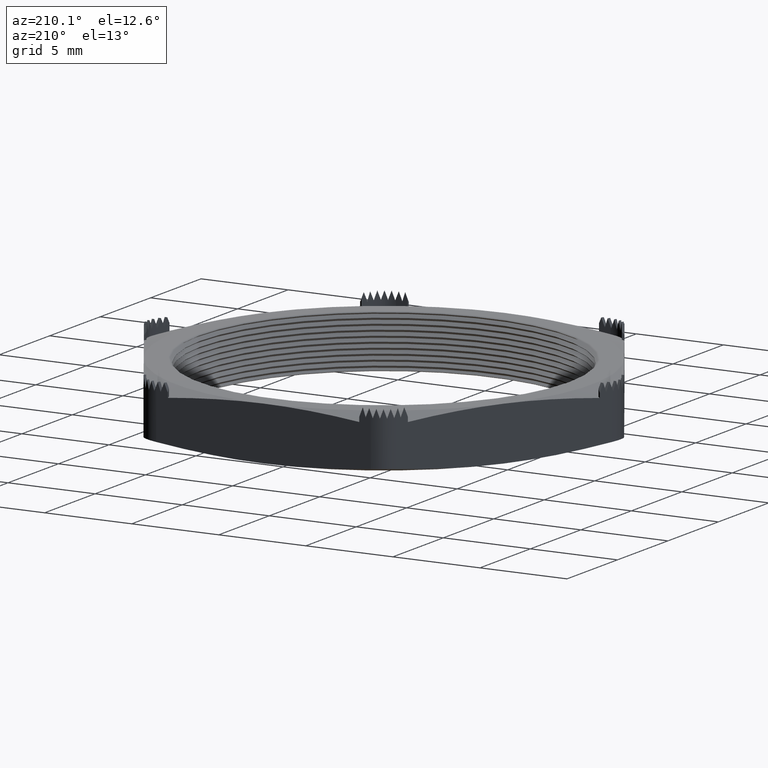
[diagram: clean part render]
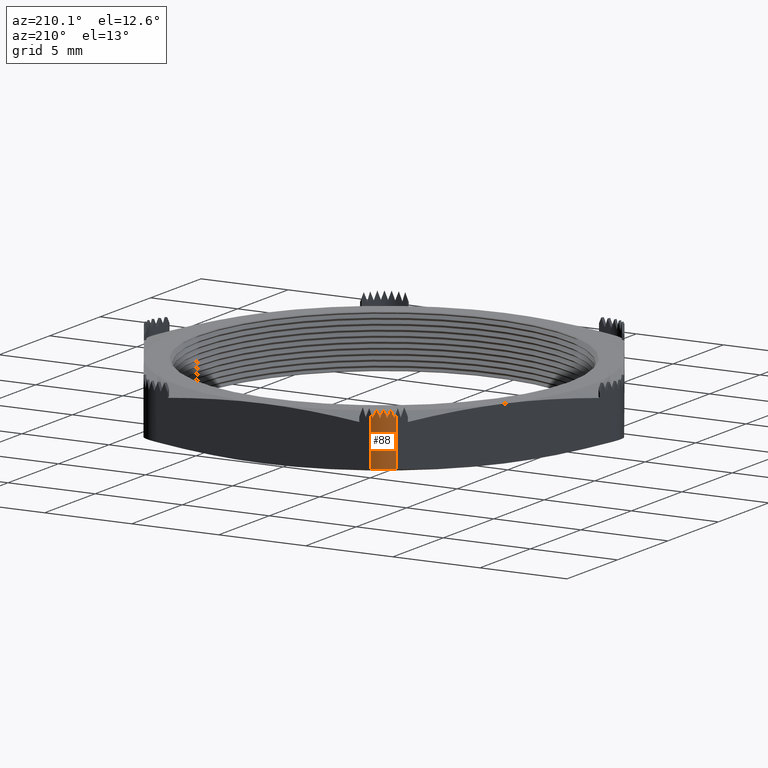
[diagram: same view with one face highlighted and labeled with its STEP entity id]
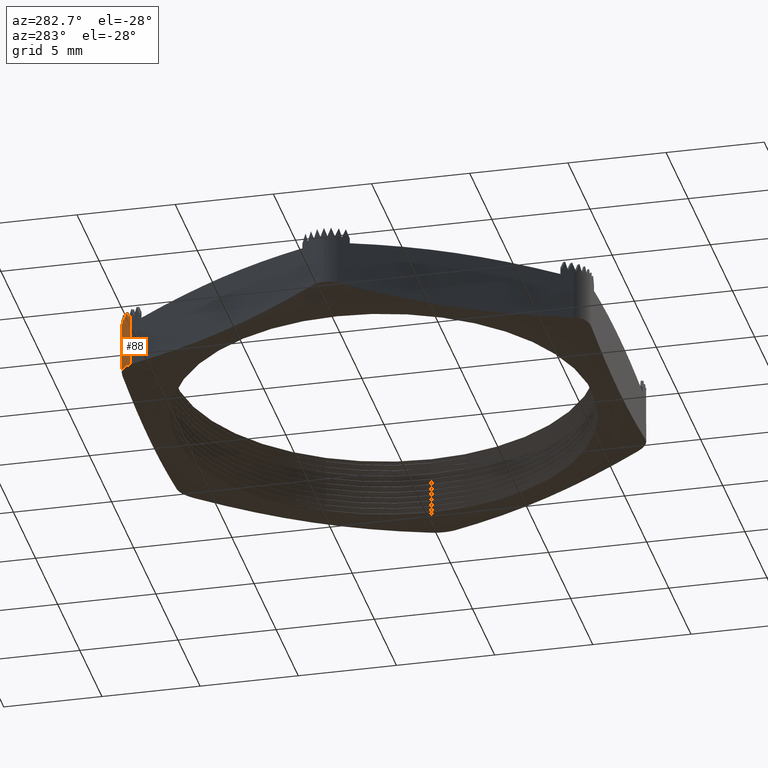
[diagram: same view with one face highlighted and labeled with its STEP entity id]
A machine part, auxiliary view. The second image highlights one B-rep face of the part: STEP entity #88.
A second angle (auxiliary view) of the same face is appended — the face is thin or edge-on in the first view.
In plain terms, the highlighted cylindrical surface (edge-blend (fillet) strip) has radius 1.27 mm, axis along (0, 0, -1).
Its self-contained STEP definition (entity closure, byte-faithful):
#24 = EDGE_CURVE ( 'NONE', #114, #25, #2411, .T. ) ;
#25 = VERTEX_POINT ( 'NONE', #2407 ) ;
#68 = ORIENTED_EDGE ( 'NONE', *, *, #2009, .F. ) ;
#69 = ORIENTED_EDGE ( 'NONE', *, *, #70, .F. ) ;
#70 = EDGE_CURVE ( 'NONE', #71, #2007, #2478, .T. ) ;
#71 = VERTEX_POINT ( 'NONE', #2479 ) ;
#72 = ORIENTED_EDGE ( 'NONE', *, *, #73, .F. ) ;
#73 = EDGE_CURVE ( 'NONE', #74, #71, #2472, .T. ) ;
#74 = VERTEX_POINT ( 'NONE', #2473 ) ;
#88 = ADVANCED_FACE ( 'NONE', ( #2533 ), #2532, .T. ) ;
#114 = VERTEX_POINT ( 'NONE', #2539 ) ;
#139 = ORIENTED_EDGE ( 'NONE', *, *, #140, .F. ) ;
#140 = EDGE_CURVE ( 'NONE', #141, #74, #2627, .T. ) ;
#141 = VERTEX_POINT ( 'NONE', #2628 ) ;
#142 = ORIENTED_EDGE ( 'NONE', *, *, #143, .F. ) ;
#143 = EDGE_CURVE ( 'NONE', #144, #141, #2621, .T. ) ;
#144 = VERTEX_POINT ( 'NONE', #2622 ) ;
#145 = ORIENTED_EDGE ( 'NONE', *, *, #146, .F. ) ;
#146 = EDGE_CURVE ( 'NONE', #147, #144, #2640, .T. ) ;
#147 = VERTEX_POINT ( 'NONE', #2641 ) ;
#148 = ORIENTED_EDGE ( 'NONE', *, *, #149, .F. ) ;
#149 = EDGE_CURVE ( 'NONE', #150, #147, #2634, .T. ) ;
#150 = VERTEX_POINT ( 'NONE', #2635 ) ;
#151 = ORIENTED_EDGE ( 'NONE', *, *, #152, .F. ) ;
#152 = EDGE_CURVE ( 'NONE', #156, #150, #2629, .T. ) ;
#153 = EDGE_LOOP ( 'NONE', ( #154, #157, #158, #68, #69, #72, #139, #142, #145, #148, #151 ) ) ;
#154 = ORIENTED_EDGE ( 'NONE', *, *, #155, .F. ) ;
#155 = EDGE_CURVE ( 'NONE', #25, #156, #2651, .T. ) ;
#156 = VERTEX_POINT ( 'NONE', #2650 ) ;
#157 = ORIENTED_EDGE ( 'NONE', *, *, #24, .F. ) ;
#158 = ORIENTED_EDGE ( 'NONE', *, *, #159, .T. ) ;
#159 = EDGE_CURVE ( 'NONE', #114, #2071, #2645, .T. ) ;
#2007 = VERTEX_POINT ( 'NONE', #5720 ) ;
#2009 = EDGE_CURVE ( 'NONE', #2007, #2071, #5719, .T. ) ;
#2071 = VERTEX_POINT ( 'NONE', #5813 ) ;
#2407 = CARTESIAN_POINT ( 'NONE',  ( -0.2424871130596428200, 0.4700000000000000300, 0.1285500000000001100 ) ) ;
#2408 = DIRECTION ( 'NONE',  ( 0.0000000000000000000, 0.0000000000000000000, 1.000000000000000000 ) ) ;
#2409 = VECTOR ( 'NONE', #2408, 39.37007874015748100 ) ;
#2410 = CARTESIAN_POINT ( 'NONE',  ( -0.2424871130596428200, 0.4700000000000000300, 0.1200000000000000000 ) ) ;
#2411 = LINE ( 'NONE', #2410, #2409 ) ;
#2468 = CARTESIAN_POINT ( 'NONE',  ( -0.2833617491481929000, 0.4487969464462571700, 0.1177500000000000200 ) ) ;
#2469 = CARTESIAN_POINT ( 'NONE',  ( -0.2819239077560052900, 0.4508378310160294200, 0.1238672535342600500 ) ) ;
#2470 = CARTESIAN_POINT ( 'NONE',  ( -0.2803375216681117100, 0.4527655179398735700, 0.1301790276427301200 ) ) ;
#2471 = CARTESIAN_POINT ( 'NONE',  ( -0.2786114687126250400, 0.4545692193816530700, 0.1366500000000000200 ) ) ;
#2472 =( BOUNDED_CURVE ( )  B_SPLINE_CURVE ( 3, ( #2471, #2470, #2469, #2468 ),
 .UNSPECIFIED., .F., .T. ) 
 B_SPLINE_CURVE_WITH_KNOTS ( ( 4, 4 ),
 ( 4.996183089593016800, 5.145834300454574800 ),
 .UNSPECIFIED. ) 
 CURVE ( )  GEOMETRIC_REPRESENTATION_ITEM ( )  RATIONAL_B_SPLINE_CURVE ( ( 1.000000000000000000, 0.9981345801881192900, 0.9981345801881192900, 1.000000000000000000 ) ) 
 REPRESENTATION_ITEM ( '' )  );
#2473 = CARTESIAN_POINT ( 'NONE',  ( -0.2786114687126250400, 0.4545692193816530700, 0.1366500000000000200 ) ) ;
#2474 = CARTESIAN_POINT ( 'NONE',  ( -0.2857883832488647400, 0.4450000000000000100, 0.1285499999999999100 ) ) ;
#2475 = CARTESIAN_POINT ( 'NONE',  ( -0.2850368499187447800, 0.4463016939113492700, 0.1250354264393569700 ) ) ;
#2476 = CARTESIAN_POINT ( 'NONE',  ( -0.2842274237505946800, 0.4475682003911742900, 0.1214329869065072200 ) ) ;
#2477 = CARTESIAN_POINT ( 'NONE',  ( -0.2833617491481929000, 0.4487969464462571700, 0.1177500000000000200 ) ) ;
#2478 =( BOUNDED_CURVE ( )  B_SPLINE_CURVE ( 3, ( #2477, #2476, #2475, #2474 ),
 .UNSPECIFIED., .F., .T. ) 
 B_SPLINE_CURVE_WITH_KNOTS ( ( 4, 4 ),
 ( 2.004241646864783000, 2.094395102393194800 ),
 .UNSPECIFIED. ) 
 CURVE ( )  GEOMETRIC_REPRESENTATION_ITEM ( )  RATIONAL_B_SPLINE_CURVE ( ( 1.000000000000000000, 0.9993228108820309000, 0.9993228108820309000, 1.000000000000000000 ) ) 
 REPRESENTATION_ITEM ( '' )  );
#2479 = CARTESIAN_POINT ( 'NONE',  ( -0.2833617491481929000, 0.4487969464462571700, 0.1177500000000000200 ) ) ;
#2528 = DIRECTION ( 'NONE',  ( -1.000000000000000000, 0.0000000000000000000, 0.0000000000000000000 ) ) ;
#2529 = DIRECTION ( 'NONE',  ( 0.0000000000000000000, 0.0000000000000000000, -1.000000000000000000 ) ) ;
#2530 = CARTESIAN_POINT ( 'NONE',  ( -0.2424871130596428200, 0.4200000000000000400, 0.1200000000000000000 ) ) ;
#2531 = AXIS2_PLACEMENT_3D ( 'NONE', #2530, #2529, #2528 ) ;
#2532 = CYLINDRICAL_SURFACE ( 'NONE', #2531, 0.05000000000000001000 ) ;
#2533 = FACE_OUTER_BOUND ( 'NONE', #153, .T. ) ;
#2539 = CARTESIAN_POINT ( 'NONE',  ( -0.2424871130596428500, 0.4700000000000000300, 0.01577328817917133700 ) ) ;
#2617 = CARTESIAN_POINT ( 'NONE',  ( -0.2733030784751071000, 0.4593748177838694000, 0.1177500000000000200 ) ) ;
#2618 = CARTESIAN_POINT ( 'NONE',  ( -0.2714580138127917800, 0.4608188231665811300, 0.1240136640134738000 ) ) ;
#2619 = CARTESIAN_POINT ( 'NONE',  ( -0.2695161673627773900, 0.4621297951411067500, 0.1303240347401783100 ) ) ;
#2620 = CARTESIAN_POINT ( 'NONE',  ( -0.2674871130596428400, 0.4633012701892219600, 0.1366499999999998300 ) ) ;
#2621 =( BOUNDED_CURVE ( )  B_SPLINE_CURVE ( 3, ( #2620, #2619, #2618, #2617 ),
 .UNSPECIFIED., .F., .T. ) 
 B_SPLINE_CURVE_WITH_KNOTS ( ( 4, 4 ),
 ( 4.712388980384689700, 4.852850395094545600 ),
 .UNSPECIFIED. ) 
 CURVE ( )  GEOMETRIC_REPRESENTATION_ITEM ( )  RATIONAL_B_SPLINE_CURVE ( ( 1.000000000000000000, 0.9983565582509005300, 0.9983565582509005300, 1.000000000000000000 ) ) 
 REPRESENTATION_ITEM ( '' )  );
#2622 = CARTESIAN_POINT ( 'NONE',  ( -0.2674871130596428400, 0.4633012701892219600, 0.1366499999999998300 ) ) ;
#2623 = CARTESIAN_POINT ( 'NONE',  ( -0.2786114687126250400, 0.4545692193816530700, 0.1366500000000000200 ) ) ;
#2624 = CARTESIAN_POINT ( 'NONE',  ( -0.2769584202013271600, 0.4562966321899807900, 0.1304527212966833700 ) ) ;
#2625 = CARTESIAN_POINT ( 'NONE',  ( -0.2751859235345125400, 0.4579012442793061200, 0.1241419216938153100 ) ) ;
#2626 = CARTESIAN_POINT ( 'NONE',  ( -0.2733030784751071000, 0.4593748177838694000, 0.1177500000000000200 ) ) ;
#2627 =( BOUNDED_CURVE ( )  B_SPLINE_CURVE ( 3, ( #2626, #2625, #2624, #2623 ),
 .UNSPECIFIED., .F., .T. ) 
 B_SPLINE_CURVE_WITH_KNOTS ( ( 4, 4 ),
 ( 1.711257741504753000, 1.854590436003224600 ),
 .UNSPECIFIED. ) 
 CURVE ( )  GEOMETRIC_REPRESENTATION_ITEM ( )  RATIONAL_B_SPLINE_CURVE ( ( 1.000000000000000000, 0.9982887108531866000, 0.9982887108531866000, 1.000000000000000000 ) ) 
 REPRESENTATION_ITEM ( '' )  );
#2628 = CARTESIAN_POINT ( 'NONE',  ( -0.2733030784751071000, 0.4593748177838694000, 0.1177500000000000200 ) ) ;
#2629 =( BOUNDED_CURVE ( )  B_SPLINE_CURVE ( 3, ( #2655, #2654, #2653, #2652 ),
 .UNSPECIFIED., .F., .T. ) 
 B_SPLINE_CURVE_WITH_KNOTS ( ( 4, 4 ),
 ( 1.137351006725010800, 1.287002217586568700 ),
 .UNSPECIFIED. ) 
 CURVE ( )  GEOMETRIC_REPRESENTATION_ITEM ( )  RATIONAL_B_SPLINE_CURVE ( ( 1.000000000000000000, 0.9981345801881192900, 0.9981345801881192900, 1.000000000000000000 ) ) 
 REPRESENTATION_ITEM ( '' )  );
#2630 = CARTESIAN_POINT ( 'NONE',  ( -0.2611787228221249000, 0.4663748177838693600, 0.1177500000000000200 ) ) ;
#2631 = CARTESIAN_POINT ( 'NONE',  ( -0.2589611482031267700, 0.4672686226844229300, 0.1241419216938153800 ) ) ;
#2632 = CARTESIAN_POINT ( 'NONE',  ( -0.2566852650371439500, 0.4680013437813450600, 0.1304527212966834500 ) ) ;
#2633 = CARTESIAN_POINT ( 'NONE',  ( -0.2543627574066607000, 0.4685692193816531300, 0.1366500000000000200 ) ) ;
#2634 =( BOUNDED_CURVE ( )  B_SPLINE_CURVE ( 3, ( #2633, #2632, #2631, #2630 ),
 .UNSPECIFIED., .F., .T. ) 
 B_SPLINE_CURVE_WITH_KNOTS ( ( 4, 4 ),
 ( 4.428594871176361600, 4.571927565674833700 ),
 .UNSPECIFIED. ) 
 CURVE ( )  GEOMETRIC_REPRESENTATION_ITEM ( )  RATIONAL_B_SPLINE_CURVE ( ( 1.000000000000000000, 0.9982887108531866000, 0.9982887108531866000, 1.000000000000000000 ) ) 
 REPRESENTATION_ITEM ( '' )  );
#2635 = CARTESIAN_POINT ( 'NONE',  ( -0.2543627574066607000, 0.4685692193816531300, 0.1366500000000000200 ) ) ;
#2636 = CARTESIAN_POINT ( 'NONE',  ( -0.2674871130596428400, 0.4633012701892219600, 0.1366499999999998300 ) ) ;
#2637 = CARTESIAN_POINT ( 'NONE',  ( -0.2654580587565083000, 0.4644727452373371100, 0.1303240347401783100 ) ) ;
#2638 = CARTESIAN_POINT ( 'NONE',  ( -0.2633518004979124600, 0.4654989476060352700, 0.1240136640134738400 ) ) ;
#2639 = CARTESIAN_POINT ( 'NONE',  ( -0.2611787228221249000, 0.4663748177838693600, 0.1177500000000000200 ) ) ;
#2640 =( BOUNDED_CURVE ( )  B_SPLINE_CURVE ( 3, ( #2639, #2638, #2637, #2636 ),
 .UNSPECIFIED., .F., .F. ) 
 B_SPLINE_CURVE_WITH_KNOTS ( ( 4, 4 ),
 ( 1.430334912085040800, 1.570796326794896800 ),
 .UNSPECIFIED. ) 
 CURVE ( )  GEOMETRIC_REPRESENTATION_ITEM ( )  RATIONAL_B_SPLINE_CURVE ( ( 1.000000000000000000, 0.9983565582509005300, 0.9983565582509005300, 1.000000000000000000 ) ) 
 REPRESENTATION_ITEM ( '' )  );
#2641 = CARTESIAN_POINT ( 'NONE',  ( -0.2611787228221249000, 0.4663748177838693600, 0.1177500000000000200 ) ) ;
#2642 = CARTESIAN_POINT ( 'NONE',  ( -0.2468676061321141700, 0.4699999999999999700, 0.01631145619101501500 ) ) ;
#2643 = CARTESIAN_POINT ( 'NONE',  ( -0.2424871130596428500, 0.4700000000000000300, 0.01577328817917133700 ) ) ;
#2645 = B_SPLINE_CURVE_WITH_KNOTS ( 'NONE', 3,
 ( #2643, #2642, #2687, #2686, #2685, #2684, #2683, #2682, #2681, #2680 ),
 .UNSPECIFIED., .F., .F.,
 ( 4, 2, 2, 2, 4 ),
 ( 1.986839480091207000E-007, 0.0003317995995692978800, 0.0006634005151905866700, 0.0009950014308118754500, 0.001326602346433164300 ),
 .UNSPECIFIED. ) ;
#2646 = CARTESIAN_POINT ( 'NONE',  ( -0.2469886821892465500, 0.4697969464462571400, 0.1177500000000000200 ) ) ;
#2647 = CARTESIAN_POINT ( 'NONE',  ( -0.2454917195895439900, 0.4699322696158065900, 0.1214329869065073500 ) ) ;
#2648 = CARTESIAN_POINT ( 'NONE',  ( -0.2439901797198828200, 0.4700000000000000300, 0.1250354264393571900 ) ) ;
#2649 = CARTESIAN_POINT ( 'NONE',  ( -0.2424871130596428200, 0.4700000000000000300, 0.1285500000000001100 ) ) ;
#2650 = CARTESIAN_POINT ( 'NONE',  ( -0.2469886821892465500, 0.4697969464462571400, 0.1177500000000000200 ) ) ;
#2651 =( BOUNDED_CURVE ( )  B_SPLINE_CURVE ( 3, ( #2649, #2648, #2647, #2646 ),
 .UNSPECIFIED., .F., .F. ) 
 B_SPLINE_CURVE_WITH_KNOTS ( ( 4, 4 ),
 ( 4.188790204786389600, 4.278943660314803700 ),
 .UNSPECIFIED. ) 
 CURVE ( )  GEOMETRIC_REPRESENTATION_ITEM ( )  RATIONAL_B_SPLINE_CURVE ( ( 1.000000000000000000, 0.9993228108820307900, 0.9993228108820307900, 1.000000000000000000 ) ) 
 REPRESENTATION_ITEM ( '' )  );
#2652 = CARTESIAN_POINT ( 'NONE',  ( -0.2543627574066607000, 0.4685692193816531300, 0.1366500000000000200 ) ) ;
#2653 = CARTESIAN_POINT ( 'NONE',  ( -0.2519376796594936500, 0.4691621743684920600, 0.1301790276427302100 ) ) ;
#2654 = CARTESIAN_POINT ( 'NONE',  ( -0.2494750607689547300, 0.4695721815588960700, 0.1238672535342601500 ) ) ;
#2655 = CARTESIAN_POINT ( 'NONE',  ( -0.2469886821892465500, 0.4697969464462571400, 0.1177500000000000200 ) ) ;
#2680 = CARTESIAN_POINT ( 'NONE',  ( -0.2857883832488647400, 0.4450000000000000100, 0.01577328817917140000 ) ) ;
#2681 = CARTESIAN_POINT ( 'NONE',  ( -0.2835979998322933900, 0.4487938553655579900, 0.01631148982404076500 ) ) ;
#2682 = CARTESIAN_POINT ( 'NONE',  ( -0.2809234714410184800, 0.4522729090250519600, 0.01672032521994602100 ) ) ;
#2683 = CARTESIAN_POINT ( 'NONE',  ( -0.2747776367564530000, 0.4584215614199442800, 0.01726893159284875100 ) ) ;
#2684 = CARTESIAN_POINT ( 'NONE',  ( -0.2712388226599085100, 0.4611374038651631600, 0.01741025089682790600 ) ) ;
#2685 = CARTESIAN_POINT ( 'NONE',  ( -0.2636976694405049900, 0.4654869113011402300, 0.01740932963299607000 ) ) ;
#2686 = CARTESIAN_POINT ( 'NONE',  ( -0.2595993150700116000, 0.4671828378075071300, 0.01726852837803761000 ) ) ;
#2687 = CARTESIAN_POINT ( 'NONE',  ( -0.2511658958500248600, 0.4694340608335040900, 0.01671622955323489800 ) ) ;
#5716 = DIRECTION ( 'NONE',  ( 0.0000000000000000000, 0.0000000000000000000, -1.000000000000000000 ) ) ;
#5717 = VECTOR ( 'NONE', #5716, 39.37007874015748100 ) ;
#5718 = CARTESIAN_POINT ( 'NONE',  ( -0.2857883832488647400, 0.4450000000000000100, 0.1200000000000000000 ) ) ;
#5719 = LINE ( 'NONE', #5718, #5717 ) ;
#5720 = CARTESIAN_POINT ( 'NONE',  ( -0.2857883832488647400, 0.4450000000000000100, 0.1285499999999999100 ) ) ;
#5813 = CARTESIAN_POINT ( 'NONE',  ( -0.2857883832488647400, 0.4450000000000000100, 0.01577328817917140000 ) ) ;